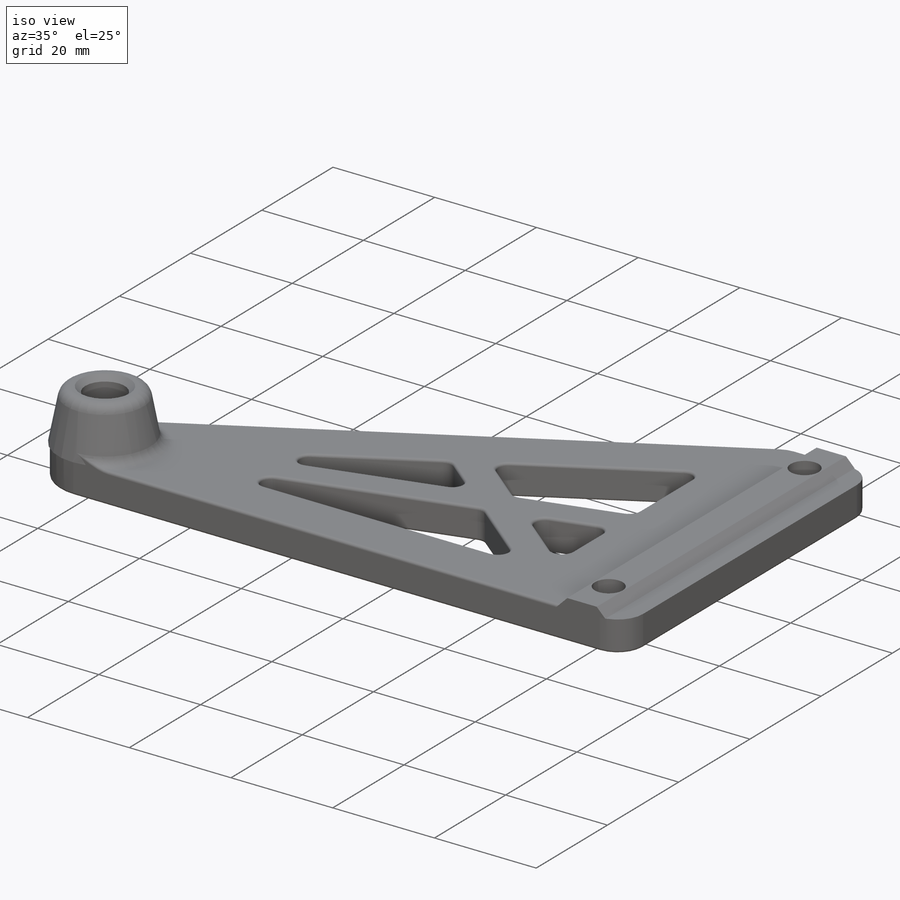
[diagram: iso view]
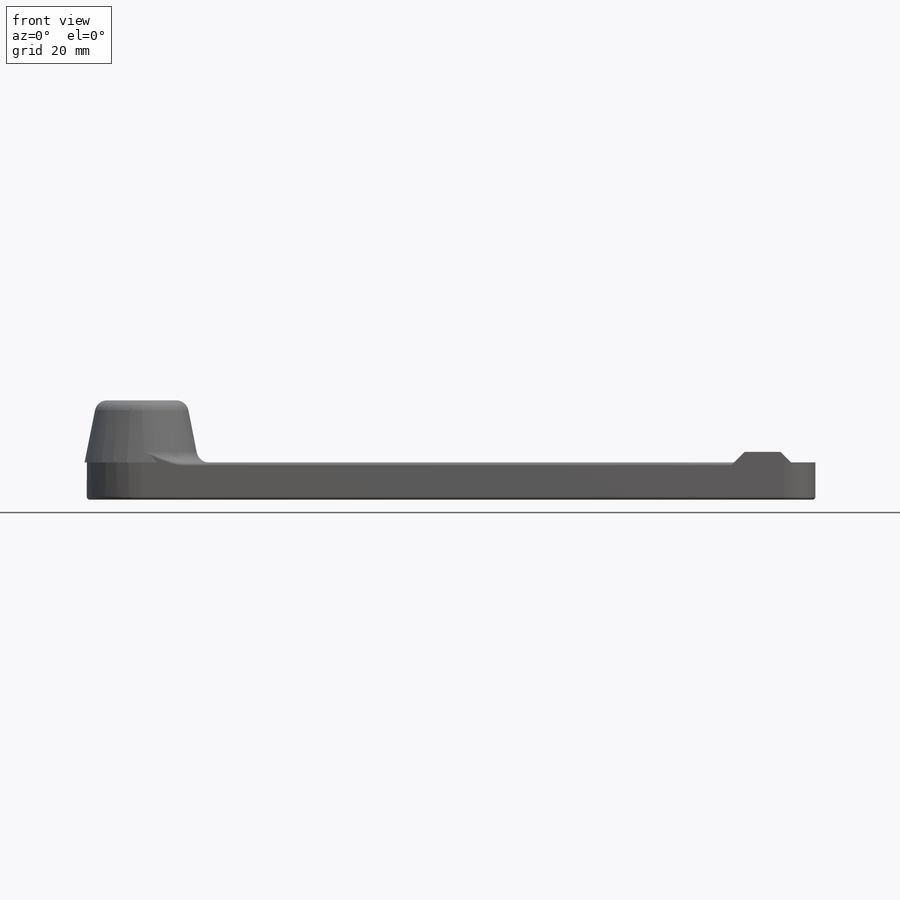
[diagram: front view]
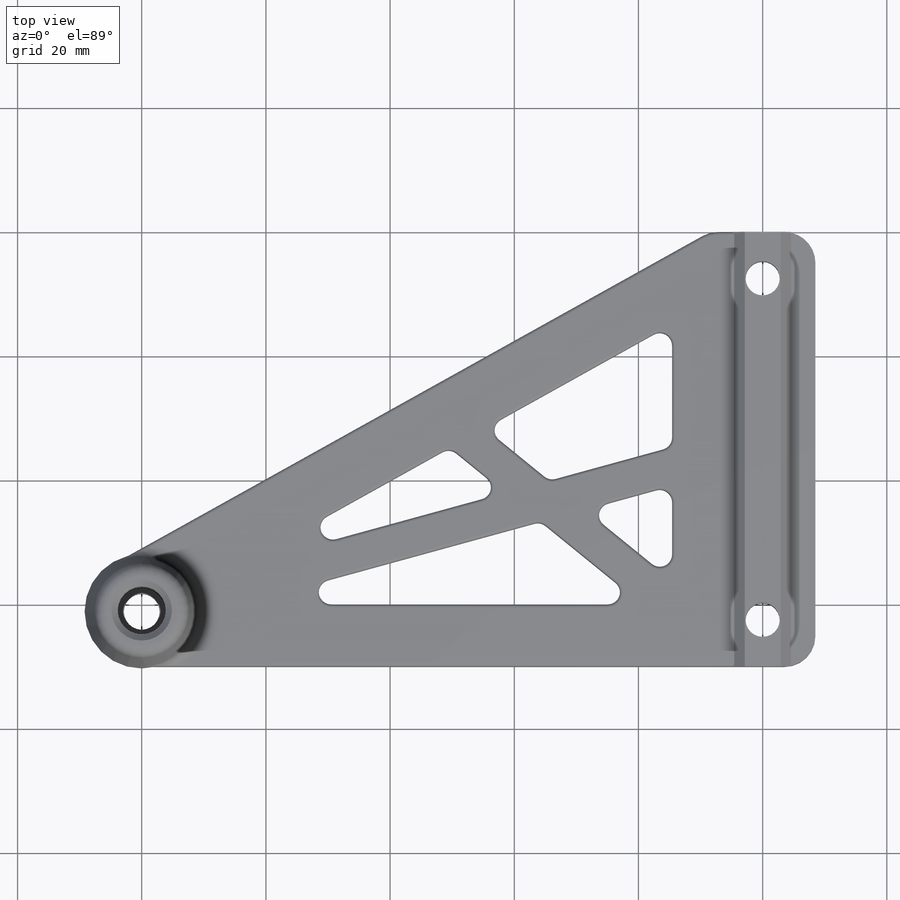
[diagram: top view]
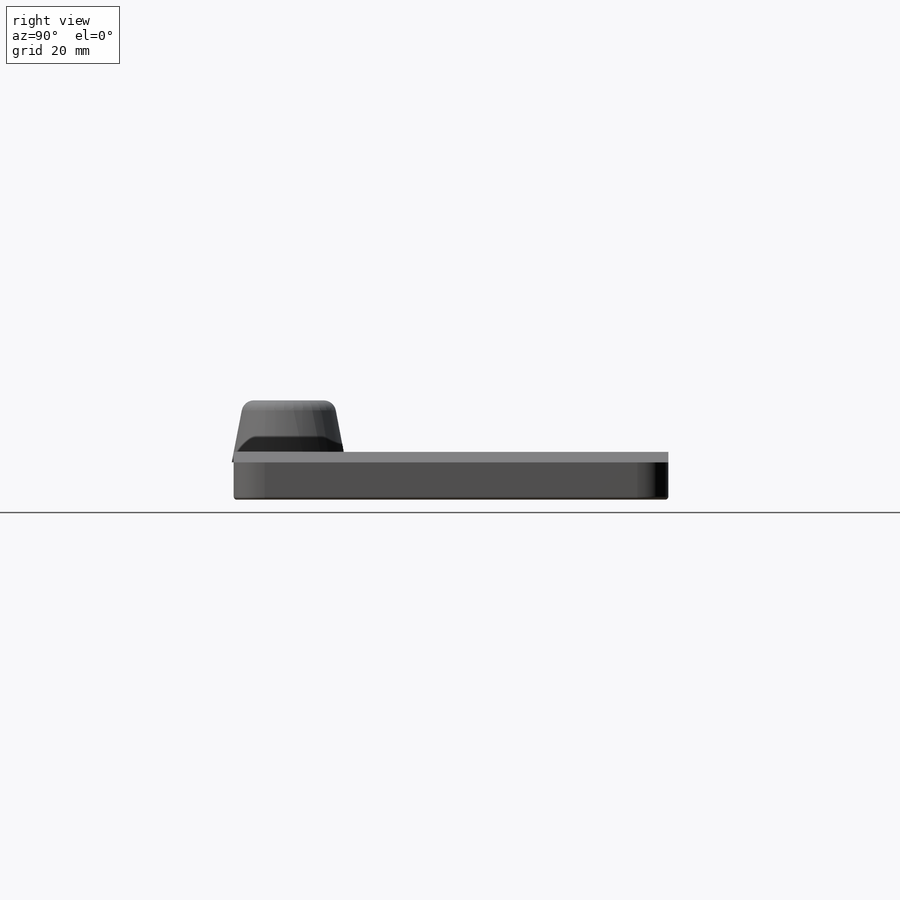
[diagram: right view]
SOLIDWORKS PART (.sldprt)
format: sldprt  version: not decoded by parser v0  size: 669,696 bytes
history: native  units: mm
features: sketch x9, extrude x4, cut_extrude x3, fillet x3, material x1, chamfer x1 (+12 scaffold rows collapsed)
feature tree (33):
  scaffold x12  (default folders/planes/origin — collapsed)
  material  "Material <not specified>"
  sketch  "Sketch2"  dims[c1.D3=2.1mm c1.D15=1.5mm c1.D22=0.79mm c1.D1=20.0mm c1.D2=20.0mm c1.D4=3.9mm c2.D1=10.0mm c2.D2=10.0mm c2.D4=3.9mm c2.D5=3.9mm c2.D6=3.43mm c2.D7=1.07mm c3.D5=0.54mm c3.D6=3.43mm c3.D7=0.54mm c3.D8=3.43mm c3.D9=1.07mm c3.D10=1.07mm c3.D11=3.4mm c3.D12=3.4mm c4.D5=3.43mm c4.D7=0.54mm c4.D8=0.54mm c4.D11=3.4mm c4.D12=3.4mm c4.D16=7.11mm c4.D17=0.11mm c4.D18=1.69mm c4.D19=0.11mm c4.D20=7.11mm c4.D21=1.69mm c4.D3=1.8mm c5.D5=0.75mm c5.D6=0.75mm c5.D7=0.75mm c5.D8=0.75mm c6.D6=0.75mm c6.D7=0.75mm c6.D8=1.8mm c6.D9=1.8mm c6.D4=1.8mm c6.D13=0.75mm c6.D14=0.75mm c7.D13=0.75mm c7.D14=0.75mm]
  sketch  "Sketch6"  dims[D1=0.0mm]
  sketch  "Sketch7"  dims[D1=~2.390021mm]
  extrude  "Boss-Extrude1"  Depth=70mm
  sketch  "Sketch8"  dims[c1.D1=~6.836826mm c1.D2=7.75mm c1.D4=5.5mm c1.D5=5.5mm c1.D8=5.0mm c1.D9=~6.624721mm c2.D1=100.0mm c2.D4=~44.554355mm c2.D6=7.5mm c2.D7=7.5mm c2.D9=~71.891638mm c2.D3=5.0mm]
  extrude  "Boss-Extrude2"  Depth=6mm
  sketch  "Sketch9"  dims[D1=18.25mm]
  extrude  "Boss-Extrude3"  Depth=10mm
  cut_extrude  "Cut-Extrude1"  [1 undecoded]
  sketch  "Sketch9<3>"
  sketch  "Sketch10"
  cut_extrude  "Cut-Extrude2"  [1 undecoded]
  sketch  "Sketch11"  dims[c1.D4=~36.22492mm c1.D6=~23.442046mm c2.D4=~71.205666mm c2.D6=~116.421657mm c2.D1=10.0mm c2.D2=10.0mm c2.D3=10.0mm c3.D4=3.0mm c3.D5=3.0mm c4.D4=3.0mm c4.D5=3.0mm c4.D6=3.0mm c4.D7=3.0mm]
  cut_extrude  "Cut-Extrude4"  [1 undecoded]
  fillet  "Fillet3"  Radius=2mm
  fillet  "Fillet4"  Radius=2mm
  chamfer  "Chamfer1"  Distance=1mm Angle=45deg
  sketch  "Sketch12"  dims[D1=1.0mm]
  extrude  "Boss-Extrude4"  Depth=1mm
  fillet  "Fillet5"  Radius=0.5mm
decode coverage: 15 of 20 modeling features carry decoded parameters
note: ~ marks probable driven/reference dimensions
note: 3 parameter values undecoded
summary: no parameter record found for 3 features
note: suppression state not decoded; provenance and decode notes live in map.json
